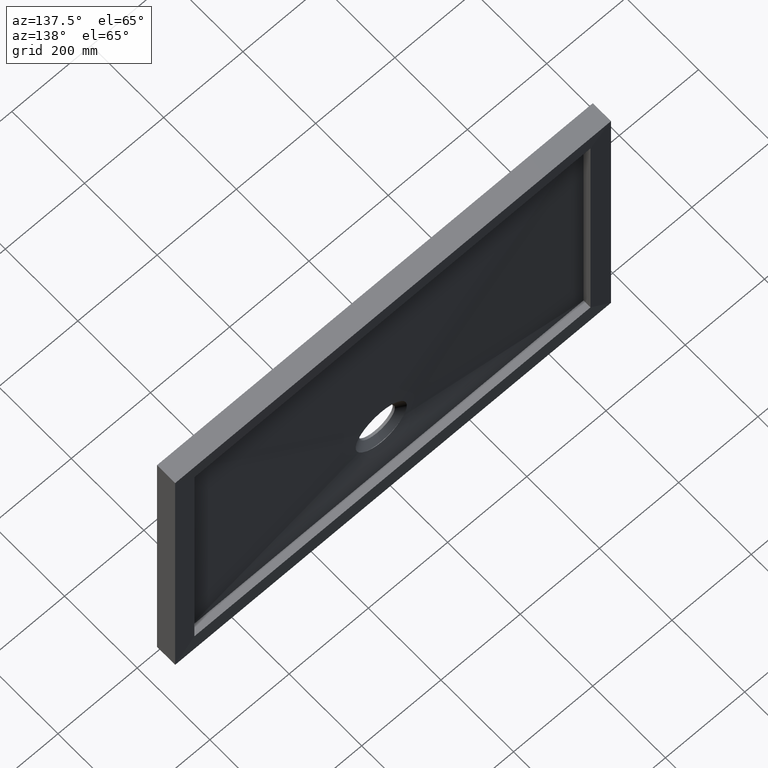
[diagram: clean part render]
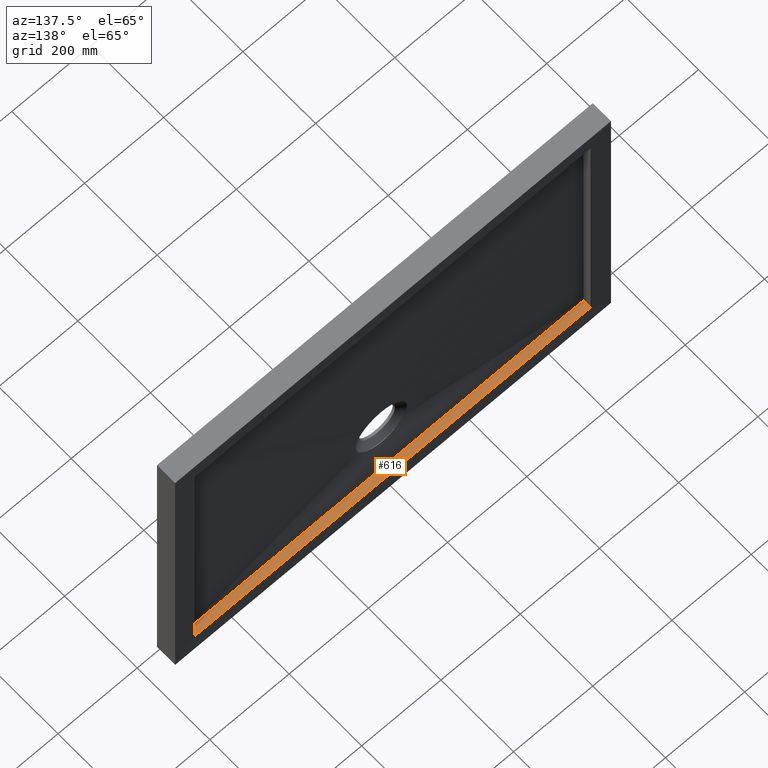
[diagram: same view with one face highlighted and labeled with its STEP entity id]
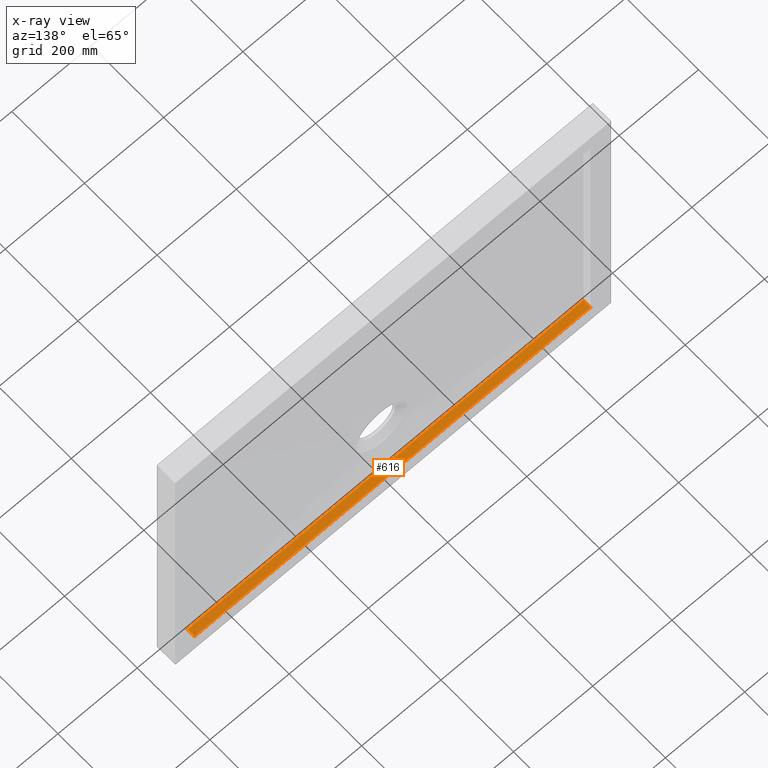
[diagram: x-ray of the same camera — body ghosted, the highlighted face saturated]
A machine part, auxiliary view. The second image highlights one B-rep face of the part: STEP entity #616.
The next image is the same camera in x-ray: the body ghosted, the highlighted face saturated — about 0% of this face is hidden behind the body in this view.
In plain terms, the highlighted planar face has unit normal (-0, 0, -1).
Its self-contained STEP definition (entity closure, byte-faithful):
#33 = CARTESIAN_POINT ( 'NONE',  ( -500.0000000000000000, 29.00000000000000000, -350.0000000000000000 ) ) ;
#59 = DIRECTION ( 'NONE',  ( -0.0000000000000000000, 0.0000000000000000000, -1.000000000000000000 ) ) ;
#64 = AXIS2_PLACEMENT_3D ( 'NONE', #297, #59, #241 ) ;
#72 = ORIENTED_EDGE ( 'NONE', *, *, #671, .T. ) ;
#99 = EDGE_CURVE ( 'NONE', #960, #694, #821, .T. ) ;
#137 = LINE ( 'NONE', #768, #853 ) ;
#145 = CARTESIAN_POINT ( 'NONE',  ( 500.0000000000000000, 48.25745360236166400, -350.0000000000000000 ) ) ;
#182 = PLANE ( 'NONE',  #64 ) ;
#229 = EDGE_CURVE ( 'NONE', #400, #596, #801, .T. ) ;
#235 = LINE ( 'NONE', #971, #544 ) ;
#241 = DIRECTION ( 'NONE',  ( -1.000000000000000000, 0.0000000000000000000, 0.0000000000000000000 ) ) ;
#247 = ORIENTED_EDGE ( 'NONE', *, *, #229, .T. ) ;
#265 = ORIENTED_EDGE ( 'NONE', *, *, #99, .T. ) ;
#275 = CARTESIAN_POINT ( 'NONE',  ( -166.6666666666666900, 28.99999999999991500, -350.0000000000000000 ) ) ;
#278 = EDGE_CURVE ( 'NONE', #960, #596, #235, .T. ) ;
#286 = CARTESIAN_POINT ( 'NONE',  ( 166.6666666666666900, 28.99999999999991500, -350.0000000000000000 ) ) ;
#293 = CARTESIAN_POINT ( 'NONE',  ( -500.0000000000000000, 29.00000000000000000, -350.0000000000000000 ) ) ;
#297 = CARTESIAN_POINT ( 'NONE',  ( 500.0000000000000000, -1220.655561573370100, -350.0000000000000000 ) ) ;
#346 = VECTOR ( 'NONE', #870, 1000.000000000000000 ) ;
#374 = CARTESIAN_POINT ( 'NONE',  ( -500.0000000000000000, 48.25745360236166400, -350.0000000000000000 ) ) ;
#399 = ORIENTED_EDGE ( 'NONE', *, *, #278, .F. ) ;
#400 = VERTEX_POINT ( 'NONE', #145 ) ;
#416 = CARTESIAN_POINT ( 'NONE',  ( 500.0000000000000000, 29.00000000000000000, -350.0000000000000000 ) ) ;
#458 = DIRECTION ( 'NONE',  ( -0.0000000000000000000, 1.000000000000000000, -0.0000000000000000000 ) ) ;
#544 = VECTOR ( 'NONE', #458, 1000.000000000000000 ) ;
#596 = VERTEX_POINT ( 'NONE', #374 ) ;
#616 = ADVANCED_FACE ( 'NONE', ( #915 ), #182, .F. ) ;
#671 = EDGE_CURVE ( 'NONE', #694, #400, #137, .T. ) ;
#681 = CARTESIAN_POINT ( 'NONE',  ( 500.0000000000000000, 29.00000000000000000, -350.0000000000000000 ) ) ;
#694 = VERTEX_POINT ( 'NONE', #681 ) ;
#768 = CARTESIAN_POINT ( 'NONE',  ( 500.0000000000000000, -1220.655561573370100, -350.0000000000000000 ) ) ;
#773 = DIRECTION ( 'NONE',  ( -0.0000000000000000000, 1.000000000000000000, -0.0000000000000000000 ) ) ;
#801 = LINE ( 'NONE', #869, #346 ) ;
#821 = B_SPLINE_CURVE_WITH_KNOTS ( 'NONE', 3,
 ( #293, #275, #286, #416 ),
 .UNSPECIFIED., .F., .F.,
 ( 4, 4 ),
 ( 0.0000000000000000000, 1.000000000000000000 ),
 .UNSPECIFIED. ) ;
#853 = VECTOR ( 'NONE', #773, 1000.000000000000000 ) ;
#860 = EDGE_LOOP ( 'NONE', ( #72, #247, #399, #265 ) ) ;
#869 = CARTESIAN_POINT ( 'NONE',  ( -500.0000000000000000, 48.25745360236189200, -350.0000000000000000 ) ) ;
#870 = DIRECTION ( 'NONE',  ( -1.000000000000000000, 0.0000000000000000000, 0.0000000000000000000 ) ) ;
#915 = FACE_OUTER_BOUND ( 'NONE', #860, .T. ) ;
#960 = VERTEX_POINT ( 'NONE', #33 ) ;
#971 = CARTESIAN_POINT ( 'NONE',  ( -500.0000000000000000, -1220.655561573370100, -350.0000000000000000 ) ) ;